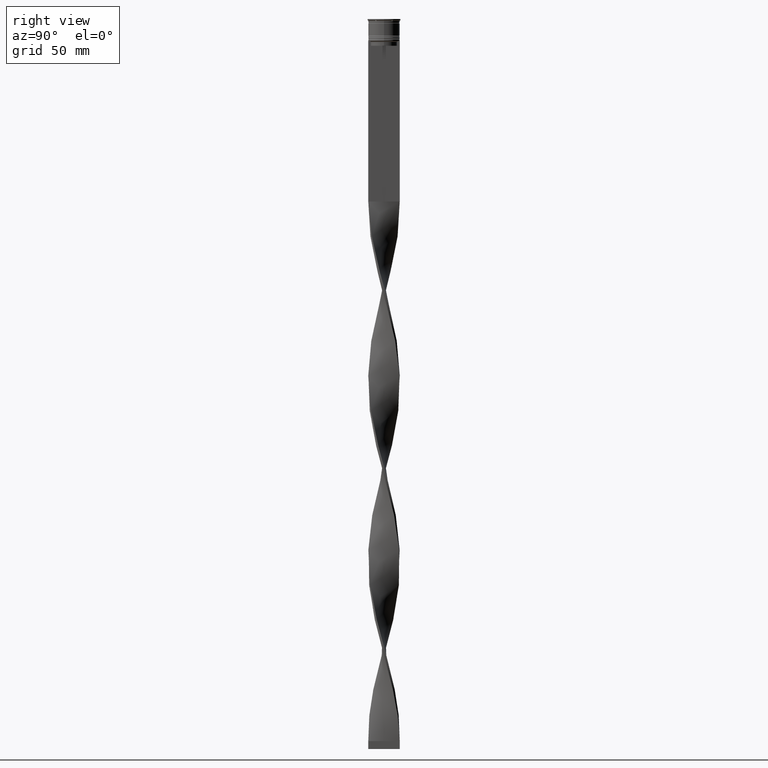
[diagram: clean part render]
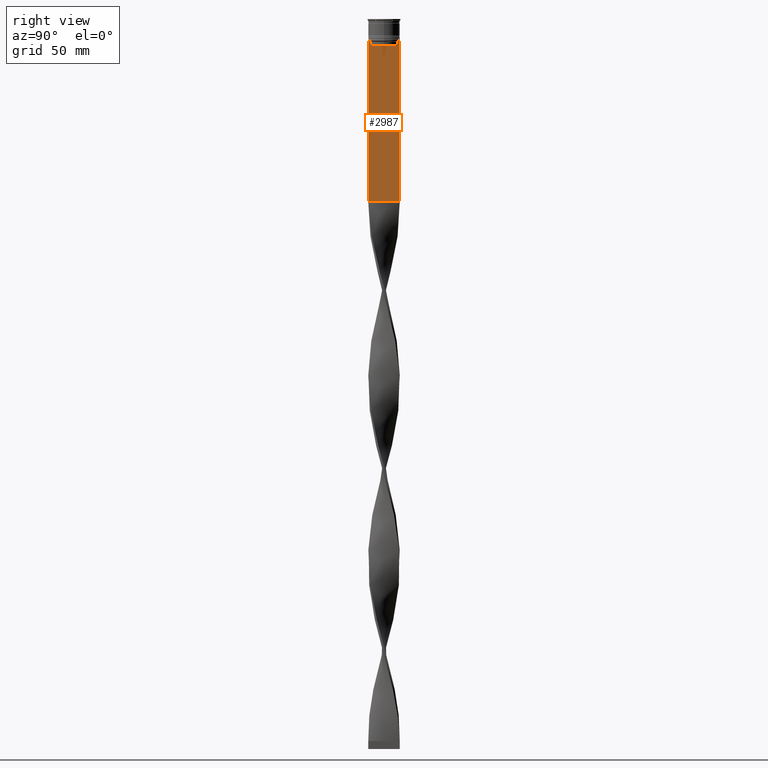
[diagram: same view with one face highlighted and labeled with its STEP entity id]
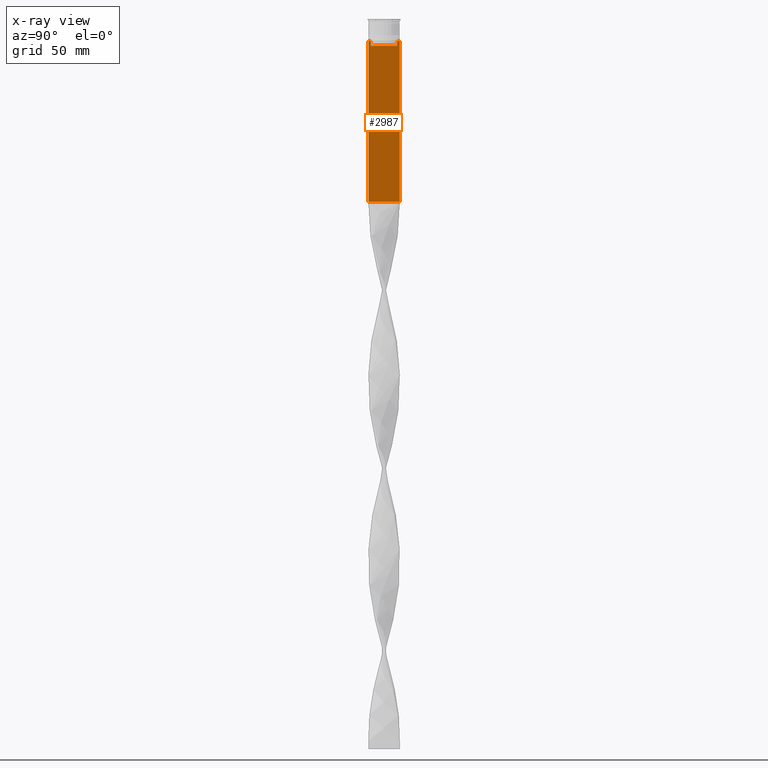
[diagram: x-ray of the same camera — body ghosted, the highlighted face saturated]
A machine part, right view. The second image highlights one B-rep face of the part: STEP entity #2987.
The next image is the same camera in x-ray: the body ghosted, the highlighted face saturated — about 0% of this face is hidden behind the body in this view.
In plain terms, the highlighted planar face has unit normal (-1, 0, 0).
Its self-contained STEP definition (entity closure, byte-faithful):
#148 = ORIENTED_EDGE ( 'NONE', *, *, #2962, .T. ) ;
#171 = CARTESIAN_POINT ( 'NONE',  ( 0.7500000000000001110, -8.533766903463440912, -14.33335220807192023 ) ) ;
#227 = DIRECTION ( 'NONE',  ( 0.000000000000000000, 0.000000000000000000, 1.000000000000000000 ) ) ;
#258 = VERTEX_POINT ( 'NONE', #4263 ) ;
#272 = LINE ( 'NONE', #3077, #4374 ) ;
#273 = EDGE_CURVE ( 'NONE', #2810, #4353, #275, .T. ) ;
#275 = LINE ( 'NONE', #2067, #2689 ) ;
#297 = VERTEX_POINT ( 'NONE', #704 ) ;
#299 = DIRECTION ( 'NONE',  ( 0.000000000000000000, -1.000000000000000000, 0.000000000000000000 ) ) ;
#310 = EDGE_CURVE ( 'NONE', #4359, #297, #3410, .T. ) ;
#345 = LINE ( 'NONE', #1042, #2082 ) ;
#361 = VECTOR ( 'NONE', #1529, 1000.000000000000000 ) ;
#407 = ORIENTED_EDGE ( 'NONE', *, *, #1325, .T. ) ;
#458 = VERTEX_POINT ( 'NONE', #4403 ) ;
#472 = CARTESIAN_POINT ( 'NONE',  ( 0.7500000000000001110, -10.00000000000000533, -116.0000000000000000 ) ) ;
#494 = LINE ( 'NONE', #3229, #361 ) ;
#561 = PLANE ( 'NONE',  #3286 ) ;
#571 = VECTOR ( 'NONE', #2092, 1000.000000000000000 ) ;
#576 = DIRECTION ( 'NONE',  ( 0.000000000000000000, 0.000000000000000000, -1.000000000000000000 ) ) ;
#603 = B_SPLINE_CURVE_WITH_KNOTS ( 'NONE', 3,
 ( #1893, #171, #3260, #3279 ),
 .UNSPECIFIED., .F., .F.,
 ( 4, 4 ),
 ( 0.03866293624047253963, 0.03937282246709320616 ),
 .UNSPECIFIED. ) ;
#704 = CARTESIAN_POINT ( 'NONE',  ( 0.7500000000000001110, -10.00000000000000533, -14.00000000000000178 ) ) ;
#799 = EDGE_CURVE ( 'NONE', #3118, #894, #1085, .T. ) ;
#827 = LINE ( 'NONE', #2280, #1465 ) ;
#894 = VERTEX_POINT ( 'NONE', #3269 ) ;
#998 = CARTESIAN_POINT ( 'NONE',  ( 0.7500000000000001110, -10.00000000000000533, -14.00000000000000178 ) ) ;
#1020 = CARTESIAN_POINT ( 'NONE',  ( 0.7500000000000001110, 8.366450860430608927, -14.50000000000000000 ) ) ;
#1042 = CARTESIAN_POINT ( 'NONE',  ( 0.7500000000000001110, -8.366450860430608927, 0.000000000000000000 ) ) ;
#1063 = CARTESIAN_POINT ( 'NONE',  ( 0.7500000000000001110, 8.400000000000003908, -17.00000000000000000 ) ) ;
#1085 = LINE ( 'NONE', #472, #4265 ) ;
#1100 = EDGE_CURVE ( 'NONE', #2496, #258, #827, .T. ) ;
#1185 = EDGE_LOOP ( 'NONE', ( #2208, #407, #2803, #4300, #2725, #3727, #3220, #1862, #148, #2129, #3663, #1388 ) ) ;
#1193 = CARTESIAN_POINT ( 'NONE',  ( 0.7500000000000001110, -10.00000000000000533, -14.00000000000000178 ) ) ;
#1219 = VERTEX_POINT ( 'NONE', #1878 ) ;
#1325 = EDGE_CURVE ( 'NONE', #4353, #2496, #2161, .T. ) ;
#1332 = CARTESIAN_POINT ( 'NONE',  ( 0.7500000000000001110, 9.999999999999998224, 6.056171120131581098 ) ) ;
#1380 = DIRECTION ( 'NONE',  ( 0.000000000000000000, -1.000000000000000000, 0.000000000000000000 ) ) ;
#1388 = ORIENTED_EDGE ( 'NONE', *, *, #2551, .T. ) ;
#1464 = LINE ( 'NONE', #1063, #571 ) ;
#1465 = VECTOR ( 'NONE', #576, 1000.000000000000000 ) ;
#1529 = DIRECTION ( 'NONE',  ( 0.000000000000000000, 0.000000000000000000, -1.000000000000000000 ) ) ;
#1783 = EDGE_CURVE ( 'NONE', #458, #1219, #603, .T. ) ;
#1784 = CARTESIAN_POINT ( 'NONE',  ( 0.7500000000000001110, -10.00000000000000533, -116.0000000000000000 ) ) ;
#1792 = CARTESIAN_POINT ( 'NONE',  ( 0.7500000000000001110, 9.999999999999998224, -14.00000000000000178 ) ) ;
#1862 = ORIENTED_EDGE ( 'NONE', *, *, #310, .T. ) ;
#1878 = CARTESIAN_POINT ( 'NONE',  ( 0.7500000000000001110, -8.868342573446296839, -14.00000000000000178 ) ) ;
#1893 = CARTESIAN_POINT ( 'NONE',  ( 0.7500000000000001110, -8.366450860430608927, -14.50000000000000000 ) ) ;
#1954 = VERTEX_POINT ( 'NONE', #3885 ) ;
#2020 = DIRECTION ( 'NONE',  ( -0.000000000000000000, -0.000000000000000000, 1.000000000000000000 ) ) ;
#2067 = CARTESIAN_POINT ( 'NONE',  ( 0.7500000000000001110, -10.00000000000000533, -14.00000000000000178 ) ) ;
#2082 = VECTOR ( 'NONE', #2020, 1000.000000000000000 ) ;
#2092 = DIRECTION ( 'NONE',  ( 0.000000000000000000, -1.000000000000000000, 0.000000000000000000 ) ) ;
#2129 = ORIENTED_EDGE ( 'NONE', *, *, #799, .T. ) ;
#2161 = B_SPLINE_CURVE_WITH_KNOTS ( 'NONE', 3,
 ( #2637, #3374, #3348, #4005 ),
 .UNSPECIFIED., .F., .F.,
 ( 4, 4 ),
 ( 0.01512225952876174867, 0.01583070519299695222 ),
 .UNSPECIFIED. ) ;
#2208 = ORIENTED_EDGE ( 'NONE', *, *, #273, .T. ) ;
#2280 = CARTESIAN_POINT ( 'NONE',  ( 0.7500000000000001110, 8.366450860430608927, 0.000000000000000000 ) ) ;
#2312 = LINE ( 'NONE', #1332, #2869 ) ;
#2496 = VERTEX_POINT ( 'NONE', #1020 ) ;
#2521 = EDGE_CURVE ( 'NONE', #1954, #458, #345, .T. ) ;
#2551 = EDGE_CURVE ( 'NONE', #4136, #2810, #272, .T. ) ;
#2556 = FACE_OUTER_BOUND ( 'NONE', #1185, .T. ) ;
#2600 = DIRECTION ( 'NONE',  ( 0.000000000000000000, -1.000000000000000000, 0.000000000000000000 ) ) ;
#2633 = EDGE_CURVE ( 'NONE', #258, #1954, #1464, .T. ) ;
#2637 = CARTESIAN_POINT ( 'NONE',  ( 0.7500000000000001110, 8.868342573446296839, -14.00000000000000178 ) ) ;
#2638 = CARTESIAN_POINT ( 'NONE',  ( 0.7500000000000001110, -9.871550030263739117, -14.00000000000000178 ) ) ;
#2689 = VECTOR ( 'NONE', #4109, 1000.000000000000000 ) ;
#2725 = ORIENTED_EDGE ( 'NONE', *, *, #2521, .T. ) ;
#2803 = ORIENTED_EDGE ( 'NONE', *, *, #1100, .T. ) ;
#2810 = VERTEX_POINT ( 'NONE', #3653 ) ;
#2869 = VECTOR ( 'NONE', #4424, 1000.000000000000000 ) ;
#2870 = DIRECTION ( 'NONE',  ( 0.000000000000000000, 1.000000000000000000, 0.000000000000000000 ) ) ;
#2962 = EDGE_CURVE ( 'NONE', #297, #3118, #494, .T. ) ;
#2986 = EDGE_CURVE ( 'NONE', #1219, #4359, #4264, .T. ) ;
#2987 = ADVANCED_FACE ( 'NONE', ( #2556 ), #561, .F. ) ;
#3077 = CARTESIAN_POINT ( 'NONE',  ( 0.7500000000000001110, -10.00000000000000533, -14.00000000000000178 ) ) ;
#3118 = VERTEX_POINT ( 'NONE', #1784 ) ;
#3204 = CARTESIAN_POINT ( 'NONE',  ( 0.7500000000000001110, 8.868342573446296839, -14.00000000000000178 ) ) ;
#3220 = ORIENTED_EDGE ( 'NONE', *, *, #2986, .T. ) ;
#3229 = CARTESIAN_POINT ( 'NONE',  ( 0.7500000000000001110, -10.00000000000000533, 6.056171120131581098 ) ) ;
#3259 = VECTOR ( 'NONE', #299, 1000.000000000000000 ) ;
#3260 = CARTESIAN_POINT ( 'NONE',  ( 0.7500000000000001110, -8.701063080777121428, -14.16668447713511725 ) ) ;
#3269 = CARTESIAN_POINT ( 'NONE',  ( 0.7500000000000002220, 9.999999999999998224, -116.0000000000000000 ) ) ;
#3279 = CARTESIAN_POINT ( 'NONE',  ( 0.7500000000000001110, -8.868342573446296839, -14.00000000000000178 ) ) ;
#3286 = AXIS2_PLACEMENT_3D ( 'NONE', #3291, #3606, #227 ) ;
#3291 = CARTESIAN_POINT ( 'NONE',  ( 0.7500000000000001110, -10.00000000000000533, 6.056171120131581098 ) ) ;
#3348 = CARTESIAN_POINT ( 'NONE',  ( 0.7500000000000001110, 8.533766897779925031, -14.33335221373273605 ) ) ;
#3374 = CARTESIAN_POINT ( 'NONE',  ( 0.7500000000000001110, 8.701063075415250481, -14.16668448247791545 ) ) ;
#3410 = LINE ( 'NONE', #998, #3259 ) ;
#3606 = DIRECTION ( 'NONE',  ( -1.000000000000000000, 0.000000000000000000, 0.000000000000000000 ) ) ;
#3653 = CARTESIAN_POINT ( 'NONE',  ( 0.7500000000000001110, 9.871550030263739117, -14.00000000000000178 ) ) ;
#3663 = ORIENTED_EDGE ( 'NONE', *, *, #4057, .F. ) ;
#3727 = ORIENTED_EDGE ( 'NONE', *, *, #1783, .T. ) ;
#3885 = CARTESIAN_POINT ( 'NONE',  ( 0.7500000000000001110, -8.366450860430608927, -17.00000000000000000 ) ) ;
#4005 = CARTESIAN_POINT ( 'NONE',  ( 0.7500000000000001110, 8.366450860430608927, -14.50000000000000000 ) ) ;
#4057 = EDGE_CURVE ( 'NONE', #4136, #894, #2312, .T. ) ;
#4109 = DIRECTION ( 'NONE',  ( 0.000000000000000000, -1.000000000000000000, 0.000000000000000000 ) ) ;
#4136 = VERTEX_POINT ( 'NONE', #1792 ) ;
#4263 = CARTESIAN_POINT ( 'NONE',  ( 0.7500000000000001110, 8.366450860430608927, -17.00000000000000000 ) ) ;
#4264 = LINE ( 'NONE', #1193, #4296 ) ;
#4265 = VECTOR ( 'NONE', #2870, 1000.000000000000000 ) ;
#4296 = VECTOR ( 'NONE', #2600, 1000.000000000000000 ) ;
#4300 = ORIENTED_EDGE ( 'NONE', *, *, #2633, .T. ) ;
#4353 = VERTEX_POINT ( 'NONE', #3204 ) ;
#4359 = VERTEX_POINT ( 'NONE', #2638 ) ;
#4374 = VECTOR ( 'NONE', #1380, 1000.000000000000000 ) ;
#4403 = CARTESIAN_POINT ( 'NONE',  ( 0.7500000000000001110, -8.366450860430608927, -14.50000000000000000 ) ) ;
#4424 = DIRECTION ( 'NONE',  ( 0.000000000000000000, 0.000000000000000000, -1.000000000000000000 ) ) ;